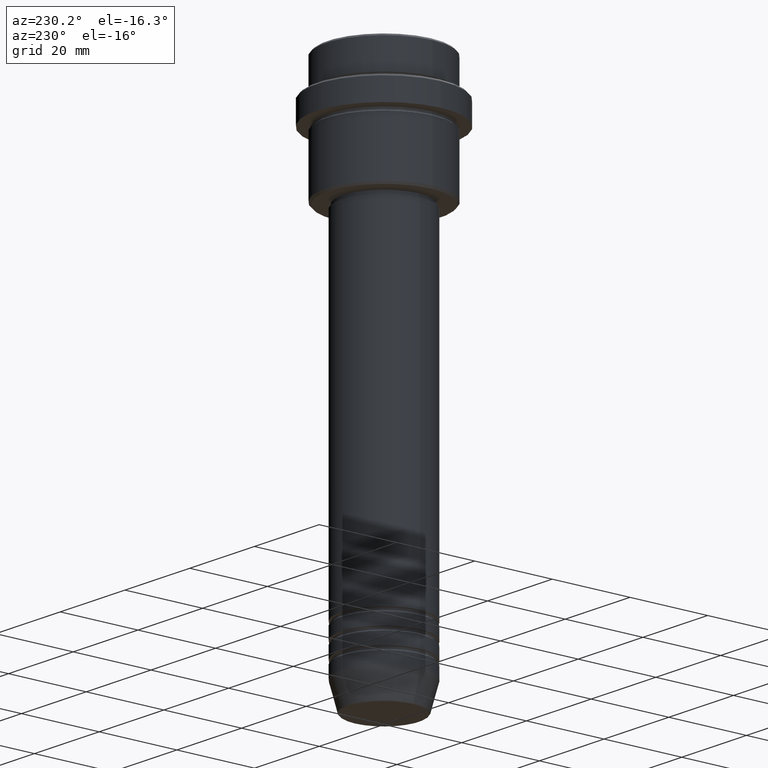
[diagram: clean part render]
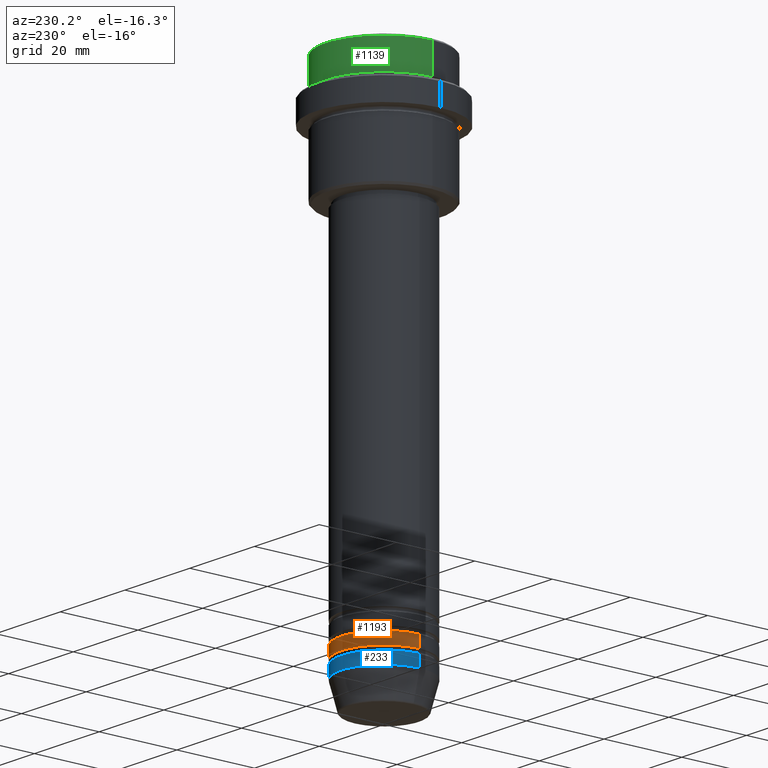
[diagram: same view with three faces highlighted in distinct colors, each labeled with its STEP entity id]
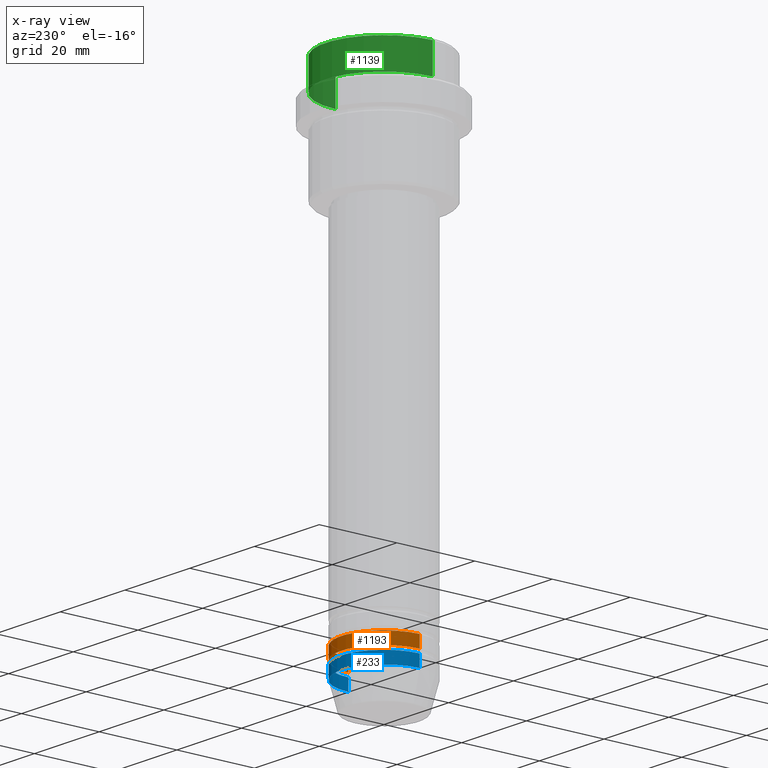
[diagram: x-ray of the same camera — body ghosted, the three highlighted faces saturated]
A machine part, auxiliary view with three faces highlighted in distinct colors.
The next image is the same camera in x-ray (body ghosted, the three faces saturated) — at least one of them is partly hidden behind the body in this view.
Their STEP definitions:

[orange] entity #1193 — the highlighted cylindrical surface (partial cylindrical patch) has radius 11 mm, axis along (-0, -0, 1).
#32 = AXIS2_PLACEMENT_3D ( 'NONE', #665, #1105, #681 ) ;
#70 = EDGE_LOOP ( 'NONE', ( #538, #806, #1200, #333 ) ) ;
#82 = VERTEX_POINT ( 'NONE', #488 ) ;
#98 = AXIS2_PLACEMENT_3D ( 'NONE', #899, #1335, #998 ) ;
#118 = CARTESIAN_POINT ( 'NONE',  ( -11.00000000000000000, 1.347111479062088405E-15, -121.9999999999999005 ) ) ;
#210 = DIRECTION ( 'NONE',  ( 1.000000000000000000, 0.000000000000000000, 0.000000000000000000 ) ) ;
#227 = CARTESIAN_POINT ( 'NONE',  ( 11.00000000000000000, 0.000000000000000000, 0.000000000000000000 ) ) ;
#312 = CARTESIAN_POINT ( 'NONE',  ( 0.000000000000000000, 0.000000000000000000, -121.9999999999999005 ) ) ;
#333 = ORIENTED_EDGE ( 'NONE', *, *, #379, .F. ) ;
#337 = CARTESIAN_POINT ( 'NONE',  ( 11.00000000000000000, 0.000000000000000000, -124.9999999999998863 ) ) ;
#343 = CYLINDRICAL_SURFACE ( 'NONE', #32, 11.00000000000000000 ) ;
#370 = VERTEX_POINT ( 'NONE', #697 ) ;
#379 = EDGE_CURVE ( 'NONE', #1333, #82, #1204, .T. ) ;
#419 = VECTOR ( 'NONE', #664, 1000.000000000000000 ) ;
#488 = CARTESIAN_POINT ( 'NONE',  ( 11.00000000000000000, 0.000000000000000000, -121.9999999999999005 ) ) ;
#538 = ORIENTED_EDGE ( 'NONE', *, *, #635, .T. ) ;
#579 = LINE ( 'NONE', #888, #1103 ) ;
#635 = EDGE_CURVE ( 'NONE', #1333, #370, #868, .T. ) ;
#664 = DIRECTION ( 'NONE',  ( -0.000000000000000000, -0.000000000000000000, 1.000000000000000000 ) ) ;
#665 = CARTESIAN_POINT ( 'NONE',  ( 0.000000000000000000, 0.000000000000000000, 0.000000000000000000 ) ) ;
#681 = DIRECTION ( 'NONE',  ( 1.000000000000000000, 0.000000000000000000, 0.000000000000000000 ) ) ;
#697 = CARTESIAN_POINT ( 'NONE',  ( -11.00000000000000000, 1.347111479062088405E-15, -124.9999999999998863 ) ) ;
#789 = DIRECTION ( 'NONE',  ( -0.000000000000000000, -0.000000000000000000, 1.000000000000000000 ) ) ;
#806 = ORIENTED_EDGE ( 'NONE', *, *, #1252, .T. ) ;
#868 = CIRCLE ( 'NONE', #98, 11.00000000000000000 ) ;
#869 = CIRCLE ( 'NONE', #984, 11.00000000000000000 ) ;
#888 = CARTESIAN_POINT ( 'NONE',  ( -11.00000000000000000, 1.347111479062088405E-15, 0.000000000000000000 ) ) ;
#899 = CARTESIAN_POINT ( 'NONE',  ( 0.000000000000000000, 0.000000000000000000, -124.9999999999998863 ) ) ;
#984 = AXIS2_PLACEMENT_3D ( 'NONE', #312, #1183, #210 ) ;
#998 = DIRECTION ( 'NONE',  ( 1.000000000000000000, 0.000000000000000000, 0.000000000000000000 ) ) ;
#1103 = VECTOR ( 'NONE', #789, 1000.000000000000000 ) ;
#1105 = DIRECTION ( 'NONE',  ( -0.000000000000000000, -0.000000000000000000, 1.000000000000000000 ) ) ;
#1115 = EDGE_CURVE ( 'NONE', #82, #1315, #869, .T. ) ;
#1183 = DIRECTION ( 'NONE',  ( -0.000000000000000000, -0.000000000000000000, 1.000000000000000000 ) ) ;
#1193 = ADVANCED_FACE ( 'NONE', ( #1357 ), #343, .T. ) ;
#1200 = ORIENTED_EDGE ( 'NONE', *, *, #1115, .F. ) ;
#1204 = LINE ( 'NONE', #227, #419 ) ;
#1252 = EDGE_CURVE ( 'NONE', #370, #1315, #579, .T. ) ;
#1315 = VERTEX_POINT ( 'NONE', #118 ) ;
#1333 = VERTEX_POINT ( 'NONE', #337 ) ;
#1335 = DIRECTION ( 'NONE',  ( -0.000000000000000000, -0.000000000000000000, 1.000000000000000000 ) ) ;
#1357 = FACE_OUTER_BOUND ( 'NONE', #70, .T. ) ;

[blue] entity #233 — the highlighted cylindrical surface (partial cylindrical patch) has radius 11 mm, axis along (-0, -0, 1).
#1 = VERTEX_POINT ( 'NONE', #780 ) ;
#3 = CARTESIAN_POINT ( 'NONE',  ( 0.000000000000000000, 0.000000000000000000, -129.0000000000000000 ) ) ;
#37 = EDGE_CURVE ( 'NONE', #1, #825, #142, .T. ) ;
#93 = CARTESIAN_POINT ( 'NONE',  ( 0.000000000000000000, 0.000000000000000000, 0.000000000000000000 ) ) ;
#94 = VERTEX_POINT ( 'NONE', #1157 ) ;
#142 = LINE ( 'NONE', #1111, #455 ) ;
#174 = CARTESIAN_POINT ( 'NONE',  ( 11.00000000000000000, 0.000000000000000000, -129.0000000000000000 ) ) ;
#221 = FACE_OUTER_BOUND ( 'NONE', #470, .T. ) ;
#223 = LINE ( 'NONE', #534, #575 ) ;
#233 = ADVANCED_FACE ( 'NONE', ( #221 ), #637, .T. ) ;
#248 = ORIENTED_EDGE ( 'NONE', *, *, #837, .F. ) ;
#434 = DIRECTION ( 'NONE',  ( 1.000000000000000000, 0.000000000000000000, 0.000000000000000000 ) ) ;
#455 = VECTOR ( 'NONE', #566, 1000.000000000000000 ) ;
#470 = EDGE_LOOP ( 'NONE', ( #1251, #1013, #248, #1014 ) ) ;
#534 = CARTESIAN_POINT ( 'NONE',  ( 11.00000000000000000, 0.000000000000000000, 0.000000000000000000 ) ) ;
#544 = DIRECTION ( 'NONE',  ( -0.000000000000000000, -0.000000000000000000, 1.000000000000000000 ) ) ;
#555 = EDGE_CURVE ( 'NONE', #748, #1, #823, .T. ) ;
#566 = DIRECTION ( 'NONE',  ( -0.000000000000000000, -0.000000000000000000, 1.000000000000000000 ) ) ;
#575 = VECTOR ( 'NONE', #1106, 1000.000000000000000 ) ;
#593 = AXIS2_PLACEMENT_3D ( 'NONE', #93, #1300, #1082 ) ;
#637 = CYLINDRICAL_SURFACE ( 'NONE', #593, 11.00000000000000000 ) ;
#654 = CARTESIAN_POINT ( 'NONE',  ( -11.00000000000000000, 1.347111479062088405E-15, -126.0000000000000000 ) ) ;
#748 = VERTEX_POINT ( 'NONE', #174 ) ;
#755 = CIRCLE ( 'NONE', #1123, 11.00000000000000000 ) ;
#780 = CARTESIAN_POINT ( 'NONE',  ( -11.00000000000000000, 1.347111479062088405E-15, -129.0000000000000000 ) ) ;
#823 = CIRCLE ( 'NONE', #1167, 11.00000000000000000 ) ;
#825 = VERTEX_POINT ( 'NONE', #654 ) ;
#837 = EDGE_CURVE ( 'NONE', #94, #825, #755, .T. ) ;
#857 = EDGE_CURVE ( 'NONE', #748, #94, #223, .T. ) ;
#978 = DIRECTION ( 'NONE',  ( 1.000000000000000000, 0.000000000000000000, 0.000000000000000000 ) ) ;
#1013 = ORIENTED_EDGE ( 'NONE', *, *, #37, .T. ) ;
#1014 = ORIENTED_EDGE ( 'NONE', *, *, #857, .F. ) ;
#1082 = DIRECTION ( 'NONE',  ( 1.000000000000000000, 0.000000000000000000, 0.000000000000000000 ) ) ;
#1106 = DIRECTION ( 'NONE',  ( -0.000000000000000000, -0.000000000000000000, 1.000000000000000000 ) ) ;
#1111 = CARTESIAN_POINT ( 'NONE',  ( -11.00000000000000000, 1.347111479062088405E-15, 0.000000000000000000 ) ) ;
#1123 = AXIS2_PLACEMENT_3D ( 'NONE', #1386, #544, #978 ) ;
#1157 = CARTESIAN_POINT ( 'NONE',  ( 11.00000000000000000, 0.000000000000000000, -126.0000000000000000 ) ) ;
#1167 = AXIS2_PLACEMENT_3D ( 'NONE', #3, #1275, #434 ) ;
#1251 = ORIENTED_EDGE ( 'NONE', *, *, #555, .T. ) ;
#1275 = DIRECTION ( 'NONE',  ( -0.000000000000000000, -0.000000000000000000, 1.000000000000000000 ) ) ;
#1300 = DIRECTION ( 'NONE',  ( -0.000000000000000000, -0.000000000000000000, 1.000000000000000000 ) ) ;
#1386 = CARTESIAN_POINT ( 'NONE',  ( 0.000000000000000000, 0.000000000000000000, -126.0000000000000000 ) ) ;

[green] entity #1139 — the highlighted cylindrical surface (partial cylindrical patch) has radius 15 mm, axis along (-0, -0, 1).
#45 = ORIENTED_EDGE ( 'NONE', *, *, #1012, .F. ) ;
#51 = AXIS2_PLACEMENT_3D ( 'NONE', #451, #770, #1320 ) ;
#171 = CARTESIAN_POINT ( 'NONE',  ( 15.00000000000000000, 0.000000000000000000, 0.000000000000000000 ) ) ;
#173 = ORIENTED_EDGE ( 'NONE', *, *, #360, .T. ) ;
#192 = AXIS2_PLACEMENT_3D ( 'NONE', #1337, #362, #1331 ) ;
#212 = VECTOR ( 'NONE', #720, 1000.000000000000000 ) ;
#220 = CARTESIAN_POINT ( 'NONE',  ( -15.00000000000000000, 1.836970198721029589E-15, -7.999999999999998224 ) ) ;
#285 = CARTESIAN_POINT ( 'NONE',  ( -15.00000000000000000, 1.836970198721029589E-15, 0.000000000000000000 ) ) ;
#296 = ORIENTED_EDGE ( 'NONE', *, *, #1050, .T. ) ;
#360 = EDGE_CURVE ( 'NONE', #1414, #1194, #980, .T. ) ;
#362 = DIRECTION ( 'NONE',  ( -0.000000000000000000, -0.000000000000000000, 1.000000000000000000 ) ) ;
#405 = LINE ( 'NONE', #171, #1188 ) ;
#426 = VERTEX_POINT ( 'NONE', #1249 ) ;
#429 = DIRECTION ( 'NONE',  ( 1.000000000000000000, 0.000000000000000000, 0.000000000000000000 ) ) ;
#435 = AXIS2_PLACEMENT_3D ( 'NONE', #1067, #1182, #429 ) ;
#451 = CARTESIAN_POINT ( 'NONE',  ( 0.000000000000000000, 0.000000000000000000, -0.4999999999999970024 ) ) ;
#518 = EDGE_CURVE ( 'NONE', #426, #627, #714, .T. ) ;
#559 = FACE_OUTER_BOUND ( 'NONE', #597, .T. ) ;
#597 = EDGE_LOOP ( 'NONE', ( #1135, #296, #173, #45 ) ) ;
#627 = VERTEX_POINT ( 'NONE', #220 ) ;
#632 = CARTESIAN_POINT ( 'NONE',  ( -15.00000000000000000, 1.836970198721029589E-15, -0.4999999999999970024 ) ) ;
#714 = CIRCLE ( 'NONE', #435, 15.00000000000000000 ) ;
#720 = DIRECTION ( 'NONE',  ( -0.000000000000000000, -0.000000000000000000, 1.000000000000000000 ) ) ;
#770 = DIRECTION ( 'NONE',  ( 0.000000000000000000, 0.000000000000000000, -1.000000000000000000 ) ) ;
#833 = DIRECTION ( 'NONE',  ( -0.000000000000000000, -0.000000000000000000, 1.000000000000000000 ) ) ;
#901 = CYLINDRICAL_SURFACE ( 'NONE', #192, 15.00000000000000000 ) ;
#980 = CIRCLE ( 'NONE', #51, 15.00000000000000000 ) ;
#1012 = EDGE_CURVE ( 'NONE', #426, #1194, #405, .T. ) ;
#1050 = EDGE_CURVE ( 'NONE', #627, #1414, #1395, .T. ) ;
#1067 = CARTESIAN_POINT ( 'NONE',  ( 0.000000000000000000, 0.000000000000000000, -7.999999999999998224 ) ) ;
#1135 = ORIENTED_EDGE ( 'NONE', *, *, #518, .T. ) ;
#1139 = ADVANCED_FACE ( 'NONE', ( #559 ), #901, .T. ) ;
#1182 = DIRECTION ( 'NONE',  ( -0.000000000000000000, -0.000000000000000000, 1.000000000000000000 ) ) ;
#1188 = VECTOR ( 'NONE', #833, 1000.000000000000000 ) ;
#1194 = VERTEX_POINT ( 'NONE', #1228 ) ;
#1228 = CARTESIAN_POINT ( 'NONE',  ( 15.00000000000000000, 0.000000000000000000, -0.4999999999999970024 ) ) ;
#1249 = CARTESIAN_POINT ( 'NONE',  ( 15.00000000000000000, 0.000000000000000000, -7.999999999999998224 ) ) ;
#1320 = DIRECTION ( 'NONE',  ( 1.000000000000000000, 0.000000000000000000, 0.000000000000000000 ) ) ;
#1331 = DIRECTION ( 'NONE',  ( 1.000000000000000000, 0.000000000000000000, 0.000000000000000000 ) ) ;
#1337 = CARTESIAN_POINT ( 'NONE',  ( 0.000000000000000000, 0.000000000000000000, 0.000000000000000000 ) ) ;
#1395 = LINE ( 'NONE', #285, #212 ) ;
#1414 = VERTEX_POINT ( 'NONE', #632 ) ;